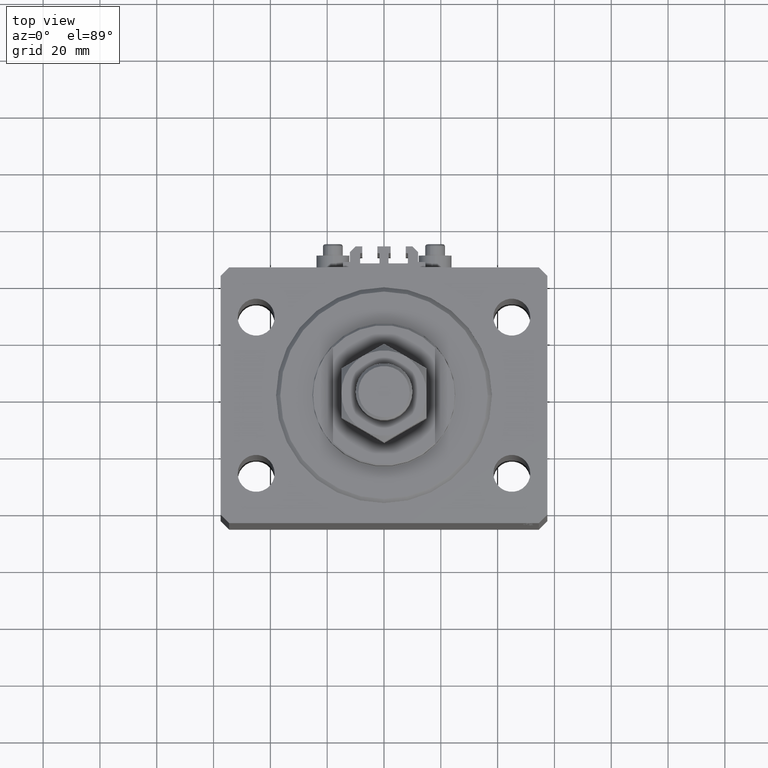
[diagram: clean part render]
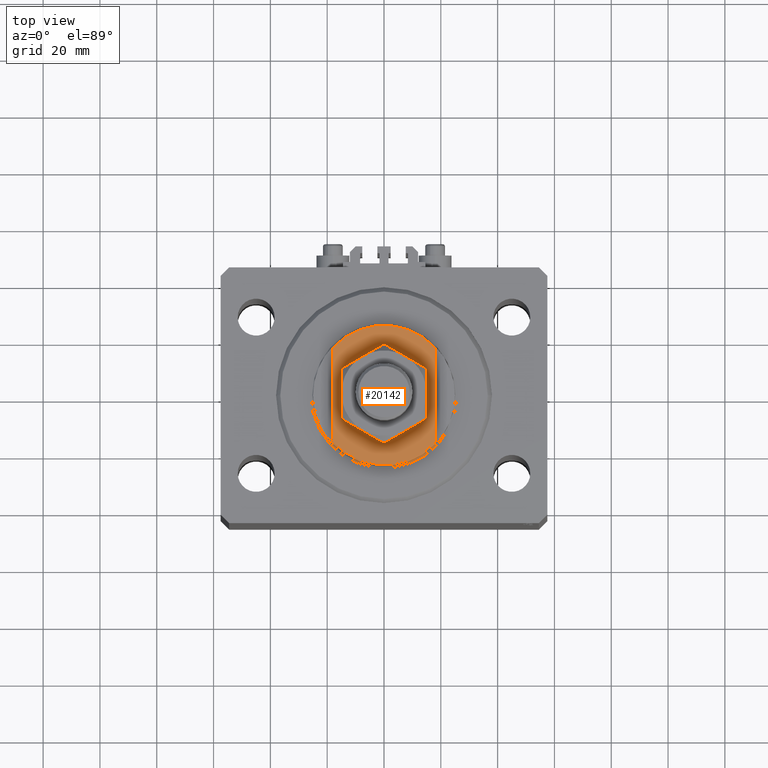
[diagram: same view with one face highlighted and labeled with its STEP entity id]
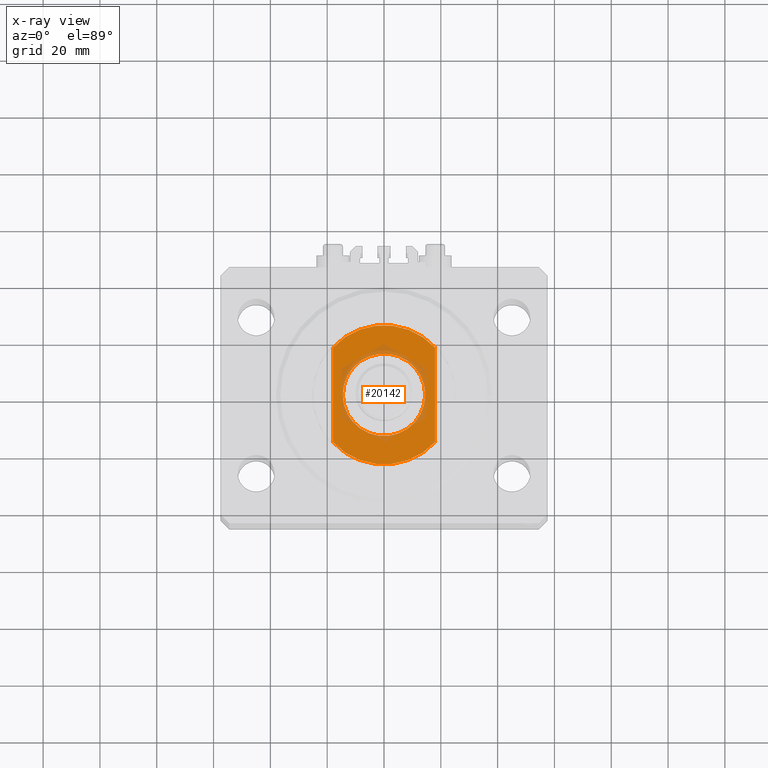
[diagram: x-ray of the same camera — body ghosted, the highlighted face saturated]
A machine part, top view. The second image highlights one B-rep face of the part: STEP entity #20142.
The next image is the same camera in x-ray: the body ghosted, the highlighted face saturated — about 14% of this face is hidden behind the body in this view.
In plain terms, the highlighted planar face has unit normal (0, 0, 1).
Its self-contained STEP definition (entity closure, byte-faithful):
#360 = DIRECTION ( 'NONE',  ( -0.000000000000000000, -0.000000000000000000, 1.000000000000000000 ) ) ;
#668 = VERTEX_POINT ( 'NONE', #28061 ) ;
#1601 = EDGE_CURVE ( 'NONE', #26299, #668, #29763, .T. ) ;
#2145 = VERTEX_POINT ( 'NONE', #29582 ) ;
#2319 = DIRECTION ( 'NONE',  ( -1.000000000000000000, 0.000000000000000000, 0.000000000000000000 ) ) ;
#4435 = DIRECTION ( 'NONE',  ( 0.000000000000000000, 0.000000000000000000, -1.000000000000000000 ) ) ;
#4578 = EDGE_LOOP ( 'NONE', ( #9063, #7899 ) ) ;
#4708 = CARTESIAN_POINT ( 'NONE',  ( 0.000000000000000000, 0.000000000000000000, -7.000000000000000000 ) ) ;
#7389 = LINE ( 'NONE', #38277, #34000 ) ;
#7899 = ORIENTED_EDGE ( 'NONE', *, *, #39896, .T. ) ;
#7921 = CARTESIAN_POINT ( 'NONE',  ( 0.000000000000000000, 0.000000000000000000, -7.000000000000000000 ) ) ;
#8542 = EDGE_CURVE ( 'NONE', #2145, #33529, #9409, .T. ) ;
#9063 = ORIENTED_EDGE ( 'NONE', *, *, #42301, .T. ) ;
#9409 = CIRCLE ( 'NONE', #48082, 24.49999999999996803 ) ;
#9604 = CARTESIAN_POINT ( 'NONE',  ( 14.50000000000001243, 1.775737858763663987E-15, -7.000000000000000000 ) ) ;
#9977 = VERTEX_POINT ( 'NONE', #15583 ) ;
#11114 = DIRECTION ( 'NONE',  ( -0.000000000000000000, -1.000000000000000000, -0.000000000000000000 ) ) ;
#13510 = ORIENTED_EDGE ( 'NONE', *, *, #48742, .T. ) ;
#15583 = CARTESIAN_POINT ( 'NONE',  ( -14.50000000000001243, 0.000000000000000000, -7.000000000000000000 ) ) ;
#16315 = DIRECTION ( 'NONE',  ( 0.000000000000000000, 0.000000000000000000, -1.000000000000000000 ) ) ;
#17297 = FACE_OUTER_BOUND ( 'NONE', #44901, .T. ) ;
#19704 = ORIENTED_EDGE ( 'NONE', *, *, #30263, .F. ) ;
#20029 = CARTESIAN_POINT ( 'NONE',  ( 0.000000000000000000, 0.000000000000000000, -7.000000000000000000 ) ) ;
#20142 = ADVANCED_FACE ( 'NONE', ( #39074, #17297 ), #43522, .T. ) ;
#20504 = VERTEX_POINT ( 'NONE', #9604 ) ;
#26119 = ORIENTED_EDGE ( 'NONE', *, *, #1601, .T. ) ;
#26299 = VERTEX_POINT ( 'NONE', #45726 ) ;
#28061 = CARTESIAN_POINT ( 'NONE',  ( 18.00000000000000000, 16.62077013859462227, -7.000000000000000000 ) ) ;
#28341 = DIRECTION ( 'NONE',  ( -0.000000000000000000, -0.000000000000000000, 1.000000000000000000 ) ) ;
#29582 = CARTESIAN_POINT ( 'NONE',  ( 18.00000000000000000, -16.62077013859462227, -7.000000000000000000 ) ) ;
#29763 = CIRCLE ( 'NONE', #40787, 24.49999999999996803 ) ;
#30263 = EDGE_CURVE ( 'NONE', #26299, #33529, #33397, .T. ) ;
#32406 = DIRECTION ( 'NONE',  ( -1.000000000000000000, 0.000000000000000000, -0.000000000000000000 ) ) ;
#33046 = AXIS2_PLACEMENT_3D ( 'NONE', #34049, #360, #45635 ) ;
#33397 = LINE ( 'NONE', #37821, #41500 ) ;
#33529 = VERTEX_POINT ( 'NONE', #35944 ) ;
#34000 = VECTOR ( 'NONE', #38043, 1000.000000000000000 ) ;
#34049 = CARTESIAN_POINT ( 'NONE',  ( 0.000000000000000000, 0.000000000000000000, -7.000000000000000000 ) ) ;
#35136 = DIRECTION ( 'NONE',  ( -1.000000000000000000, 0.000000000000000000, 0.000000000000000000 ) ) ;
#35382 = DIRECTION ( 'NONE',  ( 0.000000000000000000, 0.000000000000000000, -1.000000000000000000 ) ) ;
#35944 = CARTESIAN_POINT ( 'NONE',  ( -18.00000000000000000, -16.62077013859462227, -7.000000000000000000 ) ) ;
#36283 = CIRCLE ( 'NONE', #45735, 14.50000000000001421 ) ;
#37821 = CARTESIAN_POINT ( 'NONE',  ( -18.00000000000000000, -41.24318125460256113, -7.000000000000000000 ) ) ;
#38043 = DIRECTION ( 'NONE',  ( 0.000000000000000000, -1.000000000000000000, -0.000000000000000000 ) ) ;
#38277 = CARTESIAN_POINT ( 'NONE',  ( 18.00000000000000000, -41.24318125460256113, -7.000000000000000000 ) ) ;
#39074 = FACE_BOUND ( 'NONE', #4578, .T. ) ;
#39896 = EDGE_CURVE ( 'NONE', #20504, #9977, #48851, .T. ) ;
#40227 = ORIENTED_EDGE ( 'NONE', *, *, #8542, .T. ) ;
#40787 = AXIS2_PLACEMENT_3D ( 'NONE', #7921, #4435, #41787 ) ;
#41500 = VECTOR ( 'NONE', #11114, 1000.000000000000000 ) ;
#41787 = DIRECTION ( 'NONE',  ( -1.000000000000000000, 0.000000000000000000, 0.000000000000000000 ) ) ;
#42301 = EDGE_CURVE ( 'NONE', #9977, #20504, #36283, .T. ) ;
#42913 = CARTESIAN_POINT ( 'NONE',  ( 0.000000000000000000, 0.000000000000000000, -7.000000000000000000 ) ) ;
#43522 = PLANE ( 'NONE',  #45969 ) ;
#44901 = EDGE_LOOP ( 'NONE', ( #26119, #13510, #40227, #19704 ) ) ;
#45635 = DIRECTION ( 'NONE',  ( -1.000000000000000000, 0.000000000000000000, 0.000000000000000000 ) ) ;
#45726 = CARTESIAN_POINT ( 'NONE',  ( -18.00000000000000000, 16.62077013859462227, -7.000000000000000000 ) ) ;
#45735 = AXIS2_PLACEMENT_3D ( 'NONE', #42913, #28341, #2319 ) ;
#45969 = AXIS2_PLACEMENT_3D ( 'NONE', #20029, #35382, #32406 ) ;
#48082 = AXIS2_PLACEMENT_3D ( 'NONE', #4708, #16315, #35136 ) ;
#48742 = EDGE_CURVE ( 'NONE', #668, #2145, #7389, .T. ) ;
#48851 = CIRCLE ( 'NONE', #33046, 14.50000000000001421 ) ;